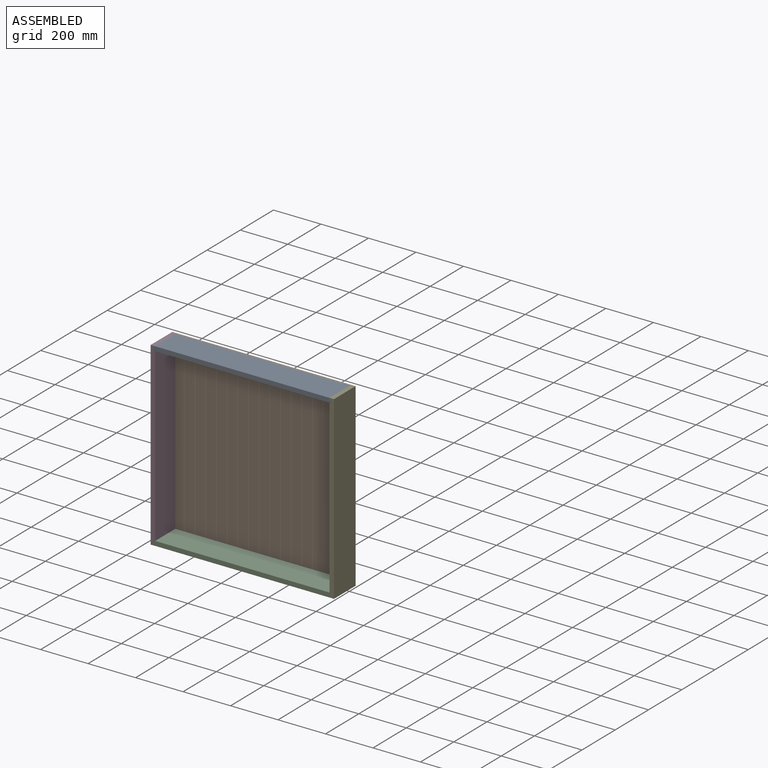
[diagram: assembled view]
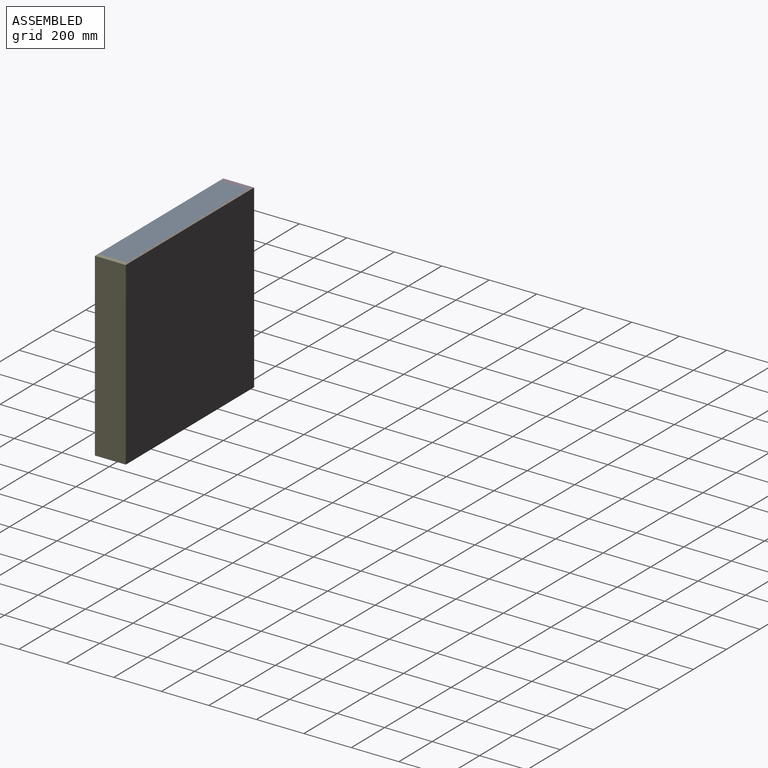
[diagram: assembled view, second angle]
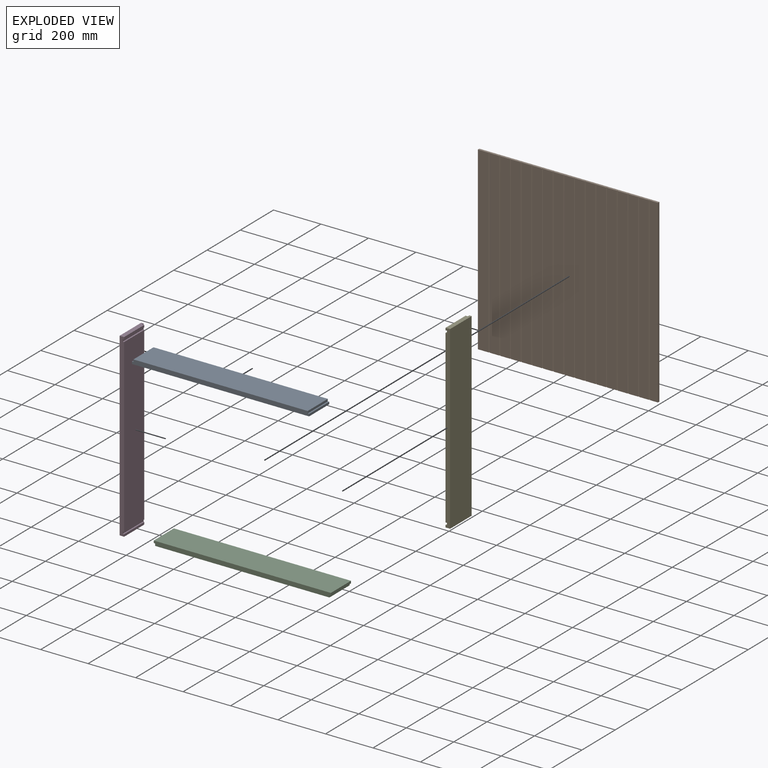
[diagram: exploded view]
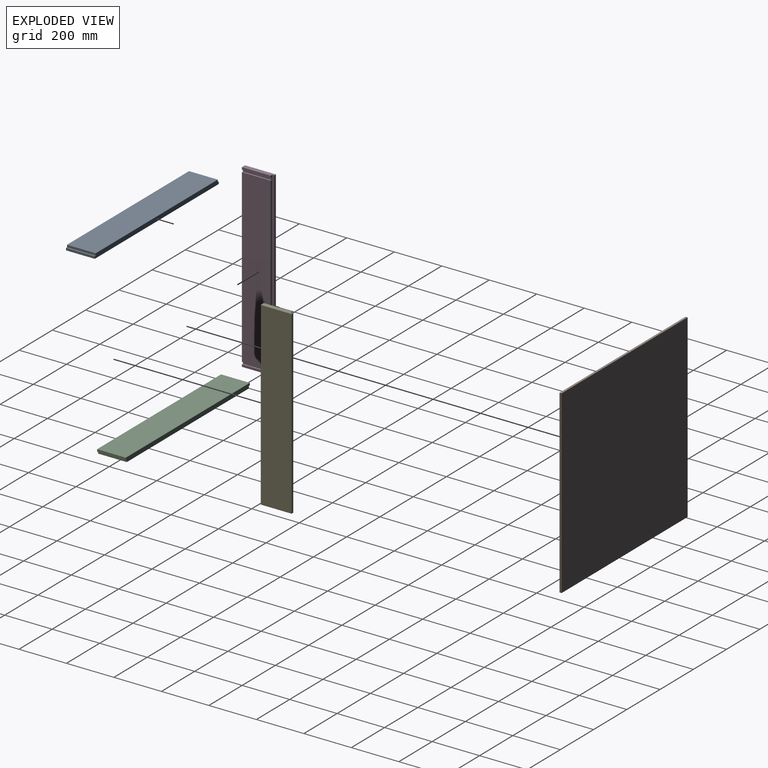
[diagram: exploded view, second angle]
ASSEMBLY  parts=5 mates=11
PART A: 10 faces, bbox 746x121x19 mm
  f0: plane 746x19mm, normal (0,-1,0), area 14060mm2, adj f1,f3,f4,f5,f6,f7,f8,f9
  f1: plane 734x121mm, normal (0,0,1), area 88814mm2, adj f0,f2,f7,f9
  f2: plane 746x19mm, normal (0,1,0), area 14060mm2, adj f1,f3,f4,f5,f6,f7,f8,f9
  f3: plane 121x9.5mm, normal (1,0,0), area 1149.5mm2, adj f0,f2,f5,f6
  f4: plane 121x9.5mm, normal (-1,0,0), area 1149.5mm2, adj f0,f2,f5,f8
  f5: plane 746x121mm, normal (0,0,-1), area 90266mm2, adj f0,f2,f3,f4
  f6: plane 121x6mm, normal (0,0,1), area 726mm2, adj f0,f2,f3,f7
  f7: plane 121x9.5mm, normal (1,0,0), area 1149.5mm2, adj f0,f1,f2,f6
  f8: plane 121x6mm, normal (0,0,1), area 726mm2, adj f0,f2,f4,f9
  f9: plane 121x9.5mm, normal (-1,0,0), area 1149.5mm2, adj f0,f1,f2,f8
PART B: 54 faces, bbox 758x760x9 mm
  f0: plane 760x41mm, normal (0,0,1), area 31160mm2, adj f16,f18,f51,f52
  f1: plane 760x41mm, normal (0,0,1), area 31160mm2, adj f16,f18,f49,f50
  f2: plane 760x41mm, normal (0,0,1), area 31160mm2, adj f16,f18,f47,f48
  f3: plane 760x41mm, normal (0,0,1), area 31160mm2, adj f16,f18,f45,f46
  f4: plane 760x41mm, normal (0,0,1), area 31160mm2, adj f16,f18,f43,f44
  f5: plane 760x41mm, normal (0,0,1), area 31160mm2, adj f16,f18,f41,f42
  f6: plane 760x41mm, normal (0,0,1), area 31160mm2, adj f16,f18,f31,f40
  f7: plane 760x41mm, normal (0,0,1), area 31160mm2, adj f16,f18,f37,f38
  f8: plane 760x41mm, normal (0,0,1), area 31160mm2, adj f16,f18,f35,f36
  f9: plane 760x41mm, normal (0,0,1), area 31160mm2, adj f16,f18,f33,f34
  f10: plane 760x41mm, normal (0,0,1), area 31160mm2, adj f16,f18,f25,f32
  f11: plane 760x41mm, normal (0,0,1), area 31160mm2, adj f16,f18,f23,f30
  f12: plane 760x34mm, normal (0,0,1), area 25840mm2, adj f16,f18,f19,f28
  f13: plane 760x41mm, normal (0,0,1), area 31160mm2, adj f16,f18,f26,f29
  f14: plane 760x41mm, normal (0,0,1), area 31160mm2, adj f16,f18,f24,f27
  f15: plane 760x41mm, normal (0,0,1), area 31160mm2, adj f16,f18,f22,f39
  f16: plane 758x9mm, normal (0,1,0), area 6711.1mm2, adj f0,f1,f2,f3,f4,f5,f6,f7
  f17: plane 760x9mm, normal (-1,0,0), area 6840mm2, adj f16,f18,f20,f21
  f18: plane 758x9mm, normal (0,-1,0), area 6711.1mm2, adj f0,f1,f2,f3,f4,f5,f6,f7
  f19: plane 760x9mm, normal (1,0,0), area 6840mm2, adj f12,f16,f18,f21
  f20: plane 760x45mm, normal (0,0,1), area 34200mm2, adj f16,f17,f18,f53
  f21: plane 760x758mm, normal (0,0,-1), area 576080mm2, adj f16,f17,f18,f19
  f22: plane 760x3.46mm, normal (-0.87,0,0.5), area 3040mm2, adj f15,f16,f18,f23
  f23: plane 760x3.46mm, normal (0.87,0,0.5), area 3040mm2, adj f11,f16,f18,f22
  f24: plane 760x3.46mm, normal (-0.87,0,0.5), area 3040mm2, adj f14,f16,f18,f25
  f25: plane 760x3.46mm, normal (0.87,0,0.5), area 3040mm2, adj f10,f16,f18,f24
  f26: plane 760x3.46mm, normal (-0.87,0,0.5), area 3040mm2, adj f13,f16,f18,f27
  f27: plane 760x3.46mm, normal (0.87,0,0.5), area 3040mm2, adj f14,f16,f18,f26
  f28: plane 760x3.46mm, normal (-0.87,0,0.5), area 3040mm2, adj f12,f16,f18,f29
  f29: plane 760x3.46mm, normal (0.87,0,0.5), area 3040mm2, adj f13,f16,f18,f28
  f30: plane 760x3.46mm, normal (-0.87,0,0.5), area 3040mm2, adj f11,f16,f18,f31
  f31: plane 760x3.46mm, normal (0.87,0,0.5), area 3040mm2, adj f6,f16,f18,f30
  f32: plane 760x3.46mm, normal (-0.87,0,0.5), area 3040mm2, adj f10,f16,f18,f33
  f33: plane 760x3.46mm, normal (0.87,0,0.5), area 3040mm2, adj f9,f16,f18,f32
  f34: plane 760x3.46mm, normal (-0.87,0,0.5), area 3040mm2, adj f9,f16,f18,f35
  f35: plane 760x3.46mm, normal (0.87,0,0.5), area 3040mm2, adj f8,f16,f18,f34
  f36: plane 760x3.46mm, normal (-0.87,0,0.5), area 3040mm2, adj f8,f16,f18,f37
  f37: plane 760x3.46mm, normal (0.87,0,0.5), area 3040mm2, adj f7,f16,f18,f36
  f38: plane 760x3.46mm, normal (-0.87,0,0.5), area 3040mm2, adj f7,f16,f18,f39
  f39: plane 760x3.46mm, normal (0.87,0,0.5), area 3040mm2, adj f15,f16,f18,f38
  f40: plane 760x3.46mm, normal (-0.87,0,0.5), area 3040mm2, adj f6,f16,f18,f41
  f41: plane 760x3.46mm, normal (0.87,0,0.5), area 3040mm2, adj f5,f16,f18,f40
  f42: plane 760x3.46mm, normal (-0.87,0,0.5), area 3040mm2, adj f5,f16,f18,f43
  f43: plane 760x3.46mm, normal (0.87,0,0.5), area 3040mm2, adj f4,f16,f18,f42
  f44: plane 760x3.46mm, normal (-0.87,0,0.5), area 3040mm2, adj f4,f16,f18,f45
  f45: plane 760x3.46mm, normal (0.87,0,0.5), area 3040mm2, adj f3,f16,f18,f44
  f46: plane 760x3.46mm, normal (-0.87,0,0.5), area 3040mm2, adj f3,f16,f18,f47
  f47: plane 760x3.46mm, normal (0.87,0,0.5), area 3040mm2, adj f2,f16,f18,f46
  f48: plane 760x3.46mm, normal (-0.87,0,0.5), area 3040mm2, adj f2,f16,f18,f49
  f49: plane 760x3.46mm, normal (0.87,0,0.5), area 3040mm2, adj f1,f16,f18,f48
  f50: plane 760x3.46mm, normal (-0.87,0,0.5), area 3040mm2, adj f1,f16,f18,f51
  f51: plane 760x3.46mm, normal (0.87,0,0.5), area 3040mm2, adj f0,f16,f18,f50
  f52: plane 760x3.46mm, normal (-0.87,0,0.5), area 3040mm2, adj f0,f16,f18,f53
  f53: plane 760x3.46mm, normal (0.87,0,0.5), area 3040mm2, adj f16,f18,f20,f52
PART C: same geometry as A
PART D: 16 faces, bbox 19x760x130 mm
  f0: plane 130x19mm, normal (0,1,0), area 2389mm2, adj f1,f2,f5,f7,f14,f15
  f1: plane 760x10mm, normal (0,0,1), area 7600mm2, adj f0,f4,f7,f15
  f2: plane 121x9.5mm, normal (1,0,0), area 1149.5mm2, adj f0,f5,f11,f14
  f3: plane 722x121mm, normal (1,0,0), area 87362mm2, adj f5,f8,f12,f14
  f4: plane 130x19mm, normal (0,-1,0), area 2389mm2, adj f1,f5,f6,f7,f14,f15
  f5: plane 760x19mm, normal (0,0,-1), area 14326mm2, adj f0,f2,f3,f4,f6,f7,f8,f9
  f6: plane 121x9.5mm, normal (1,0,0), area 1149.5mm2, adj f4,f5,f9,f14
  f7: plane 760x130mm, normal (-1,0,0), area 98800mm2, adj f0,f1,f4,f5
  f8: plane 121x6mm, normal (0,-1,0), area 726mm2, adj f3,f5,f10,f14
  f9: plane 121x6mm, normal (0,1,0), area 726mm2, adj f5,f6,f10,f14
  f10: plane 121x9.5mm, normal (1,0,0), area 1149.5mm2, adj f5,f8,f9,f14
  f11: plane 121x6mm, normal (0,-1,0), area 726mm2, adj f2,f5,f13,f14
  f12: plane 121x6mm, normal (0,1,0), area 726mm2, adj f3,f5,f13,f14
  f13: plane 121x9.5mm, normal (1,0,0), area 1149.5mm2, adj f5,f11,f12,f14
  f14: plane 760x9mm, normal (0,0,1), area 6726mm2, adj f0,f2,f3,f4,f6,f8,f9,f10
  f15: plane 760x9mm, normal (1,0,0), area 6840mm2, adj f0,f1,f4,f14
PART E: same geometry as D
PLACE A t=(1265.92,394.98,672.83)mm
PLACE B rot(axis=(1,0,0),90deg) t=(516.92,524.98,-68.17)mm
PLACE C rot(axis=(0,1,0),180deg) t=(519.92,394.98,-49.17)mm
PLACE D rot(axis=(-1,0,0),90deg) t=(506.92,394.98,691.83)mm
PLACE E rot(axis=(0,0.71,0.71),180deg) t=(1278.92,394.98,-68.17)mm
MATE planar D.f0 <-> C.f1  axis (0,0,-1) through (516.25,457.93,-68.17)mm
MATE planar B.f21 <-> D.f1  axis (0,1,0) through (895.92,524.98,311.83)mm
MATE planar A.f9 <-> D.f6  axis (-1,0,0) through (525.92,455.48,687.08)mm
MATE planar A.f0 <-> D.f5  axis (0,-1,0) through (892.92,394.98,682.29)mm
MATE planar C.f7 <-> D.f2  axis (-1,0,0) through (525.92,455.48,-63.42)mm
MATE planar D.f4 <-> A.f1  axis (0,0,1) through (516.25,457.93,691.83)mm
MATE planar E.f5 <-> C.f0  axis (0,-1,0) through (1269.47,394.98,311.83)mm
MATE planar E.f4 <-> C.f1  axis (0,0,-1) through (1269.59,457.93,-68.17)mm
MATE planar B.f17 <-> D.f15  axis (-1,0,0) through (516.92,520.48,311.83)mm
MATE planar C.f0 <-> D.f5  axis (0,-1,0) through (892.92,394.98,-58.63)mm
MATE planar C.f9 <-> E.f6  axis (1,0,0) through (1259.92,455.48,-63.42)mm
